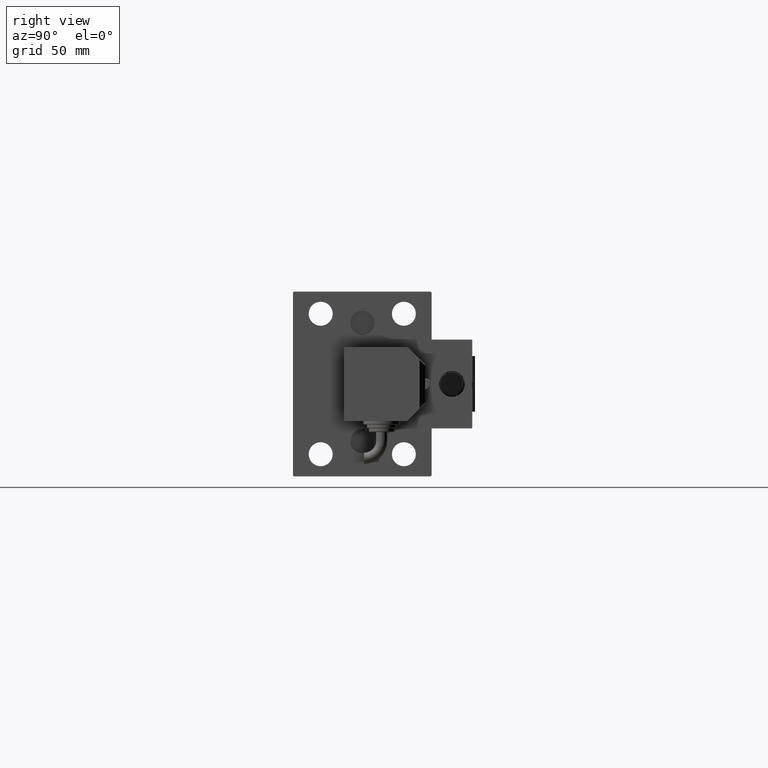
[diagram: clean part render]
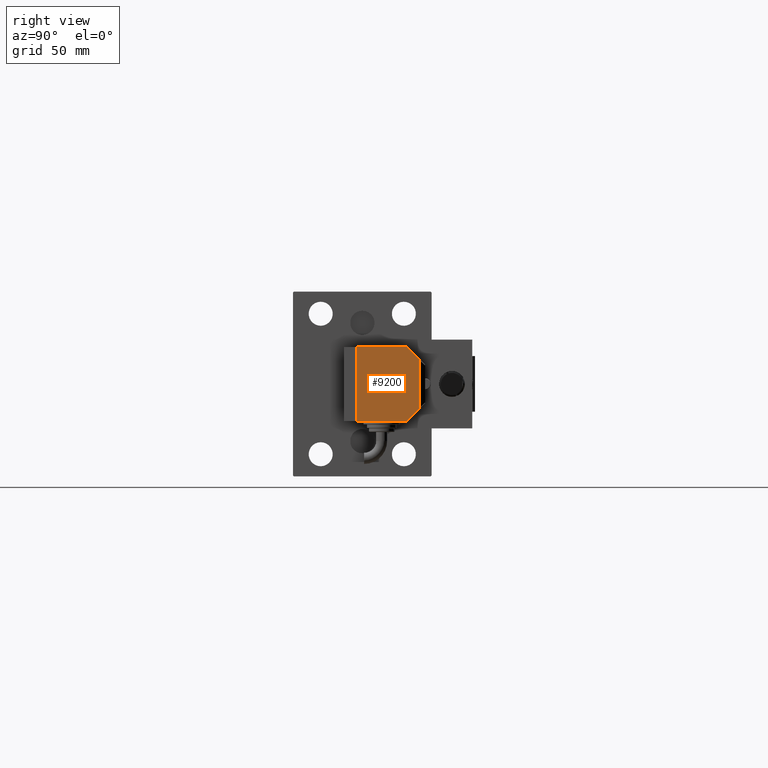
[diagram: same view with one face highlighted and labeled with its STEP entity id]
A machine part, right view. The second image highlights one B-rep face of the part: STEP entity #9200.
In plain terms, the highlighted planar face has unit normal (-1, 0, -0).
Its self-contained STEP definition (entity closure, byte-faithful):
#30 = CARTESIAN_POINT ( 'NONE',  ( 0.000000000000000000, 0.000000000000000000, -10.00000000000000000 ) ) ;
#280 = DIRECTION ( 'NONE',  ( 0.000000000000000000, 0.000000000000000000, 1.000000000000000000 ) ) ;
#497 = CARTESIAN_POINT ( 'NONE',  ( -19.99999999999994316, -13.49999999999996092, -10.00000000000000000 ) ) ;
#1467 = CARTESIAN_POINT ( 'NONE',  ( -12.99999999999994138, 20.50000000000009592, -10.00000000000000000 ) ) ;
#2244 = VERTEX_POINT ( 'NONE', #25014 ) ;
#3809 = FACE_OUTER_BOUND ( 'NONE', #41330, .T. ) ;
#5340 = CARTESIAN_POINT ( 'NONE',  ( -19.99999999999994316, -13.49999999999996092, -10.00000000000000000 ) ) ;
#5799 = CARTESIAN_POINT ( 'NONE',  ( -19.99999999999993960, 13.49999999999986500, -10.00000000000000000 ) ) ;
#6146 = VECTOR ( 'NONE', #24934, 1000.000000000000000 ) ;
#7072 = EDGE_CURVE ( 'NONE', #44566, #10552, #21649, .T. ) ;
#8197 = ORIENTED_EDGE ( 'NONE', *, *, #38416, .F. ) ;
#8673 = VERTEX_POINT ( 'NONE', #21781 ) ;
#9200 = ADVANCED_FACE ( 'NONE', ( #3809 ), #19170, .F. ) ;
#10022 = ORIENTED_EDGE ( 'NONE', *, *, #34042, .F. ) ;
#10552 = VERTEX_POINT ( 'NONE', #19597 ) ;
#11848 = LINE ( 'NONE', #497, #32074 ) ;
#11877 = DIRECTION ( 'NONE',  ( 1.000000000000000000, 0.000000000000000000, -0.000000000000000000 ) ) ;
#12377 = LINE ( 'NONE', #16410, #13668 ) ;
#12609 = LINE ( 'NONE', #5799, #12699 ) ;
#12681 = LINE ( 'NONE', #24026, #21410 ) ;
#12699 = VECTOR ( 'NONE', #16643, 1000.000000000000000 ) ;
#13375 = CARTESIAN_POINT ( 'NONE',  ( 9.999999999999984013, 23.50000000000009592, -10.00000000000000000 ) ) ;
#13531 = VECTOR ( 'NONE', #47912, 1000.000000000000000 ) ;
#13668 = VECTOR ( 'NONE', #27745, 1000.000000000000000 ) ;
#13901 = LINE ( 'NONE', #5340, #13531 ) ;
#16410 = CARTESIAN_POINT ( 'NONE',  ( -19.99999999999994316, -13.49999999999996092, -10.00000000000000000 ) ) ;
#16643 = DIRECTION ( 'NONE',  ( -0.7071067811865356934, -0.7071067811865593411, -0.000000000000000000 ) ) ;
#17399 = DIRECTION ( 'NONE',  ( -0.7071067811865479058, 0.7071067811865470176, -0.000000000000000000 ) ) ;
#18320 = CARTESIAN_POINT ( 'NONE',  ( -19.99999999999993960, 13.49999999999986500, -10.00000000000000000 ) ) ;
#19170 = PLANE ( 'NONE',  #28620 ) ;
#19597 = CARTESIAN_POINT ( 'NONE',  ( 20.00000000000005684, 13.50000000000003730, -10.00000000000000000 ) ) ;
#20572 = ORIENTED_EDGE ( 'NONE', *, *, #36341, .F. ) ;
#21134 = VERTEX_POINT ( 'NONE', #1467 ) ;
#21410 = VECTOR ( 'NONE', #34859, 1000.000000000000000 ) ;
#21649 = LINE ( 'NONE', #44823, #6146 ) ;
#21781 = CARTESIAN_POINT ( 'NONE',  ( 12.99999999999999112, 20.50000000000009592, -10.00000000000000000 ) ) ;
#24026 = CARTESIAN_POINT ( 'NONE',  ( 0.000000000000000000, 20.50000000000009592, -10.00000000000000000 ) ) ;
#24934 = DIRECTION ( 'NONE',  ( 1.284980352575412699E-16, 1.000000000000000000, 0.000000000000000000 ) ) ;
#25014 = CARTESIAN_POINT ( 'NONE',  ( -19.99999999999993960, 2.569960705150834076E-15, -9.999999999999996447 ) ) ;
#27044 = EDGE_CURVE ( 'NONE', #21134, #8673, #12681, .T. ) ;
#27396 = VERTEX_POINT ( 'NONE', #18320 ) ;
#27465 = EDGE_CURVE ( 'NONE', #10552, #8673, #41250, .T. ) ;
#27745 = DIRECTION ( 'NONE',  ( -1.284980352575421081E-16, -1.000000000000000000, -0.000000000000000000 ) ) ;
#28620 = AXIS2_PLACEMENT_3D ( 'NONE', #30, #280, #11877 ) ;
#29810 = EDGE_CURVE ( 'NONE', #21134, #27396, #12609, .T. ) ;
#31055 = VERTEX_POINT ( 'NONE', #42056 ) ;
#31237 = DIRECTION ( 'NONE',  ( -1.284980352575421081E-16, -1.000000000000000000, -0.000000000000000000 ) ) ;
#31424 = ORIENTED_EDGE ( 'NONE', *, *, #29810, .F. ) ;
#32074 = VECTOR ( 'NONE', #31237, 1000.000000000000000 ) ;
#32223 = ORIENTED_EDGE ( 'NONE', *, *, #27465, .F. ) ;
#32453 = ORIENTED_EDGE ( 'NONE', *, *, #7072, .F. ) ;
#34042 = EDGE_CURVE ( 'NONE', #31055, #44566, #13901, .T. ) ;
#34859 = DIRECTION ( 'NONE',  ( 1.000000000000000000, 0.000000000000000000, 0.000000000000000000 ) ) ;
#36341 = EDGE_CURVE ( 'NONE', #27396, #2244, #11848, .T. ) ;
#38416 = EDGE_CURVE ( 'NONE', #2244, #31055, #12377, .T. ) ;
#40557 = CARTESIAN_POINT ( 'NONE',  ( 20.00000000000005329, -13.49999999999996092, -10.00000000000000000 ) ) ;
#40745 = VECTOR ( 'NONE', #17399, 1000.000000000000114 ) ;
#41250 = LINE ( 'NONE', #13375, #40745 ) ;
#41330 = EDGE_LOOP ( 'NONE', ( #31424, #49008, #32223, #32453, #10022, #8197, #20572 ) ) ;
#42056 = CARTESIAN_POINT ( 'NONE',  ( -19.99999999999994316, -13.49999999999996092, -10.00000000000000000 ) ) ;
#44566 = VERTEX_POINT ( 'NONE', #40557 ) ;
#44823 = CARTESIAN_POINT ( 'NONE',  ( 20.00000000000005329, -13.49999999999996092, -10.00000000000000000 ) ) ;
#47912 = DIRECTION ( 'NONE',  ( 1.000000000000000000, 0.000000000000000000, 0.000000000000000000 ) ) ;
#49008 = ORIENTED_EDGE ( 'NONE', *, *, #27044, .T. ) ;